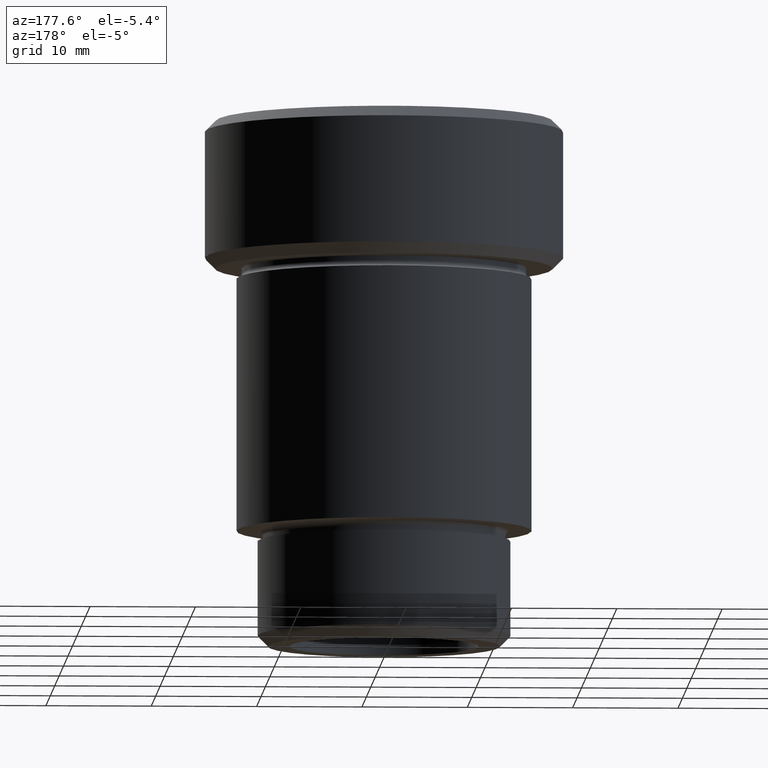
[diagram: clean part render]
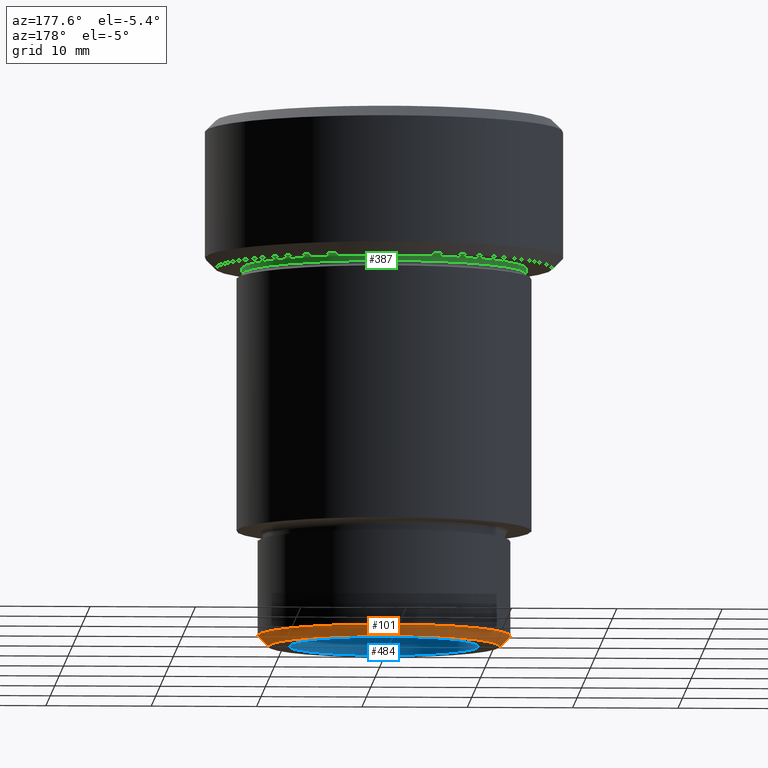
[diagram: same view with three faces highlighted in distinct colors, each labeled with its STEP entity id]
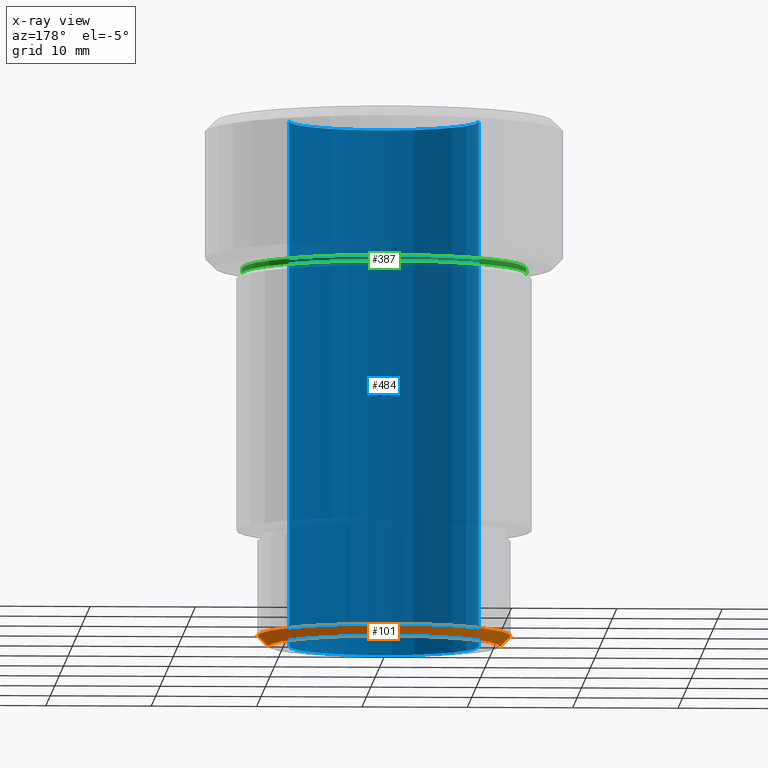
[diagram: x-ray of the same camera — body ghosted, the three highlighted faces saturated]
A machine part, auxiliary view with three faces highlighted in distinct colors.
The next image is the same camera in x-ray (body ghosted, the three faces saturated) — at least one of them is partly hidden behind the body in this view.
Their STEP definitions:

[orange] entity #101 — the highlighted conical surface has half-angle 45 deg.
#2 = CARTESIAN_POINT ( 'NONE',  ( 12.00000000000000355, 0.000000000000000000, -48.99999999999997868 ) ) ;
#6 = DIRECTION ( 'NONE',  ( -1.000000000000000000, 0.000000000000000000, 0.000000000000000000 ) ) ;
#35 = DIRECTION ( 'NONE',  ( -1.000000000000000000, 0.000000000000000000, 0.000000000000000000 ) ) ;
#51 = LINE ( 'NONE', #2, #636 ) ;
#67 = DIRECTION ( 'NONE',  ( -0.7071067811865500152, 8.659560562354962440E-17, 0.7071067811865451302 ) ) ;
#101 = ADVANCED_FACE ( 'NONE', ( #530 ), #533, .T. ) ;
#122 = CIRCLE ( 'NONE', #259, 12.00000000000000355 ) ;
#167 = CARTESIAN_POINT ( 'NONE',  ( 10.99999999999997513, 0.000000000000000000, -50.00000000000000000 ) ) ;
#180 = EDGE_LOOP ( 'NONE', ( #526, #260, #575, #450 ) ) ;
#229 = VERTEX_POINT ( 'NONE', #167 ) ;
#259 = AXIS2_PLACEMENT_3D ( 'NONE', #462, #347, #35 ) ;
#260 = ORIENTED_EDGE ( 'NONE', *, *, #372, .T. ) ;
#307 = DIRECTION ( 'NONE',  ( 0.7071067811865500152, 0.000000000000000000, 0.7071067811865451302 ) ) ;
#347 = DIRECTION ( 'NONE',  ( -0.000000000000000000, -0.000000000000000000, 1.000000000000000000 ) ) ;
#370 = AXIS2_PLACEMENT_3D ( 'NONE', #756, #560, #6 ) ;
#372 = EDGE_CURVE ( 'NONE', #693, #414, #553, .T. ) ;
#414 = VERTEX_POINT ( 'NONE', #785 ) ;
#450 = ORIENTED_EDGE ( 'NONE', *, *, #686, .F. ) ;
#459 = DIRECTION ( 'NONE',  ( -0.000000000000000000, -0.000000000000000000, 1.000000000000000000 ) ) ;
#462 = CARTESIAN_POINT ( 'NONE',  ( 0.000000000000000000, 0.000000000000000000, -48.99999999999997868 ) ) ;
#508 = VECTOR ( 'NONE', #67, 1000.000000000000114 ) ;
#516 = CARTESIAN_POINT ( 'NONE',  ( 12.00000000000000355, 0.000000000000000000, -48.99999999999997868 ) ) ;
#517 = CIRCLE ( 'NONE', #370, 10.99999999999997513 ) ;
#522 = CARTESIAN_POINT ( 'NONE',  ( 0.000000000000000000, 0.000000000000000000, -48.99999999999997868 ) ) ;
#526 = ORIENTED_EDGE ( 'NONE', *, *, #542, .F. ) ;
#530 = FACE_OUTER_BOUND ( 'NONE', #180, .T. ) ;
#533 = CONICAL_SURFACE ( 'NONE', #569, 12.00000000000000355, 0.7853981633974517207 ) ;
#539 = VERTEX_POINT ( 'NONE', #516 ) ;
#542 = EDGE_CURVE ( 'NONE', #693, #229, #517, .T. ) ;
#553 = LINE ( 'NONE', #779, #508 ) ;
#560 = DIRECTION ( 'NONE',  ( 0.000000000000000000, 0.000000000000000000, -1.000000000000000000 ) ) ;
#569 = AXIS2_PLACEMENT_3D ( 'NONE', #522, #459, #770 ) ;
#575 = ORIENTED_EDGE ( 'NONE', *, *, #611, .F. ) ;
#611 = EDGE_CURVE ( 'NONE', #539, #414, #122, .T. ) ;
#636 = VECTOR ( 'NONE', #307, 1000.000000000000114 ) ;
#680 = CARTESIAN_POINT ( 'NONE',  ( -10.99999999999997513, 1.408343819019454993E-15, -50.00000000000000000 ) ) ;
#686 = EDGE_CURVE ( 'NONE', #229, #539, #51, .T. ) ;
#693 = VERTEX_POINT ( 'NONE', #680 ) ;
#756 = CARTESIAN_POINT ( 'NONE',  ( 0.000000000000000000, 0.000000000000000000, -50.00000000000000000 ) ) ;
#770 = DIRECTION ( 'NONE',  ( 1.000000000000000000, 0.000000000000000000, 0.000000000000000000 ) ) ;
#779 = CARTESIAN_POINT ( 'NONE',  ( -12.00000000000000355, 1.469576158976824342E-15, -48.99999999999997868 ) ) ;
#785 = CARTESIAN_POINT ( 'NONE',  ( -12.00000000000000355, 1.469576158976824342E-15, -48.99999999999997868 ) ) ;

[blue] entity #484 — the highlighted cylindrical surface (partial cylindrical patch) has radius 9 mm, axis along (-0, -0, 1).
#42 = EDGE_LOOP ( 'NONE', ( #170, #782, #501, #240 ) ) ;
#57 = DIRECTION ( 'NONE',  ( 0.000000000000000000, 0.000000000000000000, 1.000000000000000000 ) ) ;
#79 = FACE_OUTER_BOUND ( 'NONE', #42, .T. ) ;
#80 = VECTOR ( 'NONE', #199, 1000.000000000000000 ) ;
#94 = CARTESIAN_POINT ( 'NONE',  ( 9.000000000000000000, 0.000000000000000000, 0.000000000000000000 ) ) ;
#100 = VERTEX_POINT ( 'NONE', #648 ) ;
#129 = EDGE_CURVE ( 'NONE', #177, #668, #353, .T. ) ;
#136 = DIRECTION ( 'NONE',  ( 1.000000000000000000, 0.000000000000000000, 0.000000000000000000 ) ) ;
#144 = CYLINDRICAL_SURFACE ( 'NONE', #774, 9.000000000000000000 ) ;
#150 = DIRECTION ( 'NONE',  ( -0.000000000000000000, -0.000000000000000000, 1.000000000000000000 ) ) ;
#170 = ORIENTED_EDGE ( 'NONE', *, *, #416, .F. ) ;
#177 = VERTEX_POINT ( 'NONE', #338 ) ;
#187 = CIRCLE ( 'NONE', #384, 9.000000000000000000 ) ;
#199 = DIRECTION ( 'NONE',  ( -0.000000000000000000, -0.000000000000000000, 1.000000000000000000 ) ) ;
#240 = ORIENTED_EDGE ( 'NONE', *, *, #129, .F. ) ;
#256 = LINE ( 'NONE', #505, #80 ) ;
#308 = EDGE_CURVE ( 'NONE', #100, #668, #187, .T. ) ;
#324 = CARTESIAN_POINT ( 'NONE',  ( -9.000000000000000000, 1.102182119232617714E-15, -50.00000000000000000 ) ) ;
#338 = CARTESIAN_POINT ( 'NONE',  ( 9.000000000000000000, 0.000000000000000000, -50.00000000000000000 ) ) ;
#353 = LINE ( 'NONE', #406, #773 ) ;
#384 = AXIS2_PLACEMENT_3D ( 'NONE', #759, #150, #398 ) ;
#389 = CARTESIAN_POINT ( 'NONE',  ( 0.000000000000000000, 0.000000000000000000, -50.00000000000000000 ) ) ;
#398 = DIRECTION ( 'NONE',  ( 1.000000000000000000, 0.000000000000000000, 0.000000000000000000 ) ) ;
#406 = CARTESIAN_POINT ( 'NONE',  ( 9.000000000000000000, 0.000000000000000000, -50.00000000000000000 ) ) ;
#408 = DIRECTION ( 'NONE',  ( -0.000000000000000000, -0.000000000000000000, 1.000000000000000000 ) ) ;
#416 = EDGE_CURVE ( 'NONE', #559, #177, #760, .T. ) ;
#431 = CARTESIAN_POINT ( 'NONE',  ( 0.000000000000000000, 0.000000000000000000, -50.00000000000000000 ) ) ;
#484 = ADVANCED_FACE ( 'NONE', ( #79 ), #144, .F. ) ;
#501 = ORIENTED_EDGE ( 'NONE', *, *, #308, .T. ) ;
#502 = DIRECTION ( 'NONE',  ( -0.000000000000000000, -0.000000000000000000, 1.000000000000000000 ) ) ;
#505 = CARTESIAN_POINT ( 'NONE',  ( -9.000000000000000000, 1.102182119232617714E-15, -50.00000000000000000 ) ) ;
#535 = EDGE_CURVE ( 'NONE', #559, #100, #256, .T. ) ;
#559 = VERTEX_POINT ( 'NONE', #324 ) ;
#616 = AXIS2_PLACEMENT_3D ( 'NONE', #431, #57, #681 ) ;
#648 = CARTESIAN_POINT ( 'NONE',  ( -9.000000000000000000, 1.102182119232617714E-15, 0.000000000000000000 ) ) ;
#668 = VERTEX_POINT ( 'NONE', #94 ) ;
#681 = DIRECTION ( 'NONE',  ( 1.000000000000000000, 0.000000000000000000, 0.000000000000000000 ) ) ;
#759 = CARTESIAN_POINT ( 'NONE',  ( 0.000000000000000000, 0.000000000000000000, 0.000000000000000000 ) ) ;
#760 = CIRCLE ( 'NONE', #616, 9.000000000000000000 ) ;
#773 = VECTOR ( 'NONE', #408, 1000.000000000000000 ) ;
#774 = AXIS2_PLACEMENT_3D ( 'NONE', #389, #502, #136 ) ;
#782 = ORIENTED_EDGE ( 'NONE', *, *, #535, .T. ) ;

[green] entity #387 — the highlighted cylindrical surface (partial cylindrical patch) has radius 13.5 mm, axis along (-0, -0, 1).
#1 = CYLINDRICAL_SURFACE ( 'NONE', #433, 13.50000000000000178 ) ;
#4 = DIRECTION ( 'NONE',  ( 1.000000000000000000, 0.000000000000000000, 0.000000000000000000 ) ) ;
#5 = LINE ( 'NONE', #9, #519 ) ;
#9 = CARTESIAN_POINT ( 'NONE',  ( -13.50000000000000178, 1.653273178848927064E-15, 0.000000000000000000 ) ) ;
#47 = EDGE_CURVE ( 'NONE', #438, #225, #5, .T. ) ;
#78 = ORIENTED_EDGE ( 'NONE', *, *, #429, .F. ) ;
#104 = CARTESIAN_POINT ( 'NONE',  ( 0.000000000000000000, 0.000000000000000000, -14.49999999999999645 ) ) ;
#114 = EDGE_LOOP ( 'NONE', ( #354, #481, #78, #424 ) ) ;
#130 = CARTESIAN_POINT ( 'NONE',  ( -13.50000000000000178, 1.653273178848927064E-15, -14.49999999999999645 ) ) ;
#134 = AXIS2_PLACEMENT_3D ( 'NONE', #731, #612, #239 ) ;
#139 = VERTEX_POINT ( 'NONE', #403 ) ;
#215 = DIRECTION ( 'NONE',  ( -0.000000000000000000, -0.000000000000000000, 1.000000000000000000 ) ) ;
#225 = VERTEX_POINT ( 'NONE', #480 ) ;
#239 = DIRECTION ( 'NONE',  ( 1.000000000000000000, 0.000000000000000000, 0.000000000000000000 ) ) ;
#346 = VERTEX_POINT ( 'NONE', #489 ) ;
#354 = ORIENTED_EDGE ( 'NONE', *, *, #603, .T. ) ;
#387 = ADVANCED_FACE ( 'NONE', ( #491 ), #1, .T. ) ;
#403 = CARTESIAN_POINT ( 'NONE',  ( 13.50000000000000178, 0.000000000000000000, -14.49999999999999645 ) ) ;
#424 = ORIENTED_EDGE ( 'NONE', *, *, #510, .F. ) ;
#429 = EDGE_CURVE ( 'NONE', #346, #225, #608, .T. ) ;
#433 = AXIS2_PLACEMENT_3D ( 'NONE', #727, #720, #4 ) ;
#438 = VERTEX_POINT ( 'NONE', #130 ) ;
#442 = CIRCLE ( 'NONE', #783, 13.50000000000000178 ) ;
#465 = DIRECTION ( 'NONE',  ( 1.000000000000000000, 0.000000000000000000, 0.000000000000000000 ) ) ;
#480 = CARTESIAN_POINT ( 'NONE',  ( -13.50000000000000178, 1.653273178848927064E-15, -13.99999999999999822 ) ) ;
#481 = ORIENTED_EDGE ( 'NONE', *, *, #47, .T. ) ;
#489 = CARTESIAN_POINT ( 'NONE',  ( 13.50000000000000178, 0.000000000000000000, -13.99999999999999822 ) ) ;
#491 = FACE_OUTER_BOUND ( 'NONE', #114, .T. ) ;
#510 = EDGE_CURVE ( 'NONE', #139, #346, #623, .T. ) ;
#519 = VECTOR ( 'NONE', #215, 1000.000000000000000 ) ;
#520 = DIRECTION ( 'NONE',  ( -0.000000000000000000, -0.000000000000000000, 1.000000000000000000 ) ) ;
#603 = EDGE_CURVE ( 'NONE', #139, #438, #442, .T. ) ;
#608 = CIRCLE ( 'NONE', #134, 13.50000000000000178 ) ;
#612 = DIRECTION ( 'NONE',  ( -0.000000000000000000, -0.000000000000000000, 1.000000000000000000 ) ) ;
#623 = LINE ( 'NONE', #629, #630 ) ;
#629 = CARTESIAN_POINT ( 'NONE',  ( 13.50000000000000178, 0.000000000000000000, 0.000000000000000000 ) ) ;
#630 = VECTOR ( 'NONE', #687, 1000.000000000000000 ) ;
#687 = DIRECTION ( 'NONE',  ( -0.000000000000000000, -0.000000000000000000, 1.000000000000000000 ) ) ;
#720 = DIRECTION ( 'NONE',  ( -0.000000000000000000, -0.000000000000000000, 1.000000000000000000 ) ) ;
#727 = CARTESIAN_POINT ( 'NONE',  ( 0.000000000000000000, 0.000000000000000000, 0.000000000000000000 ) ) ;
#731 = CARTESIAN_POINT ( 'NONE',  ( 0.000000000000000000, 0.000000000000000000, -13.99999999999999822 ) ) ;
#783 = AXIS2_PLACEMENT_3D ( 'NONE', #104, #520, #465 ) ;